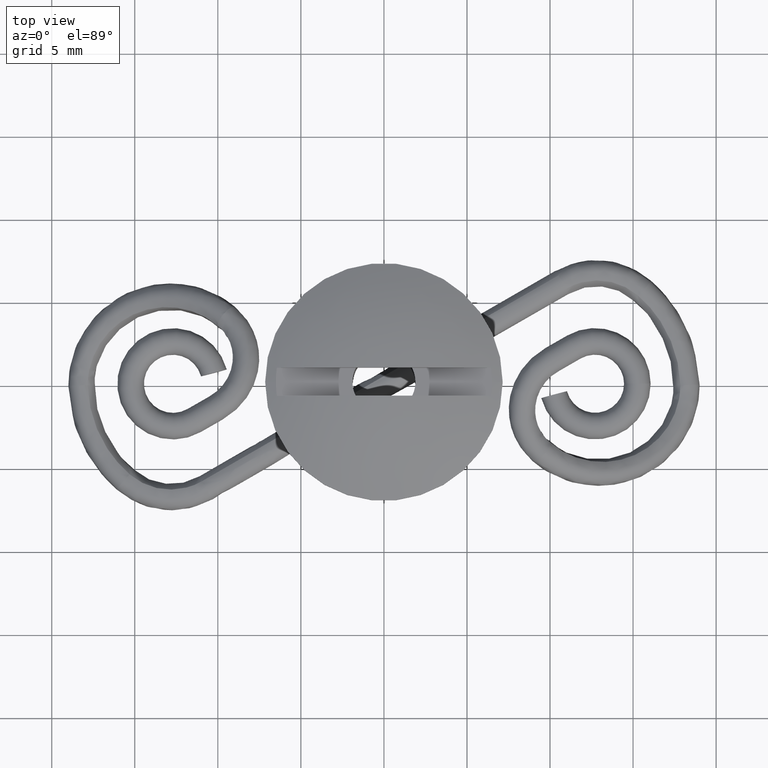
[diagram: clean part render]
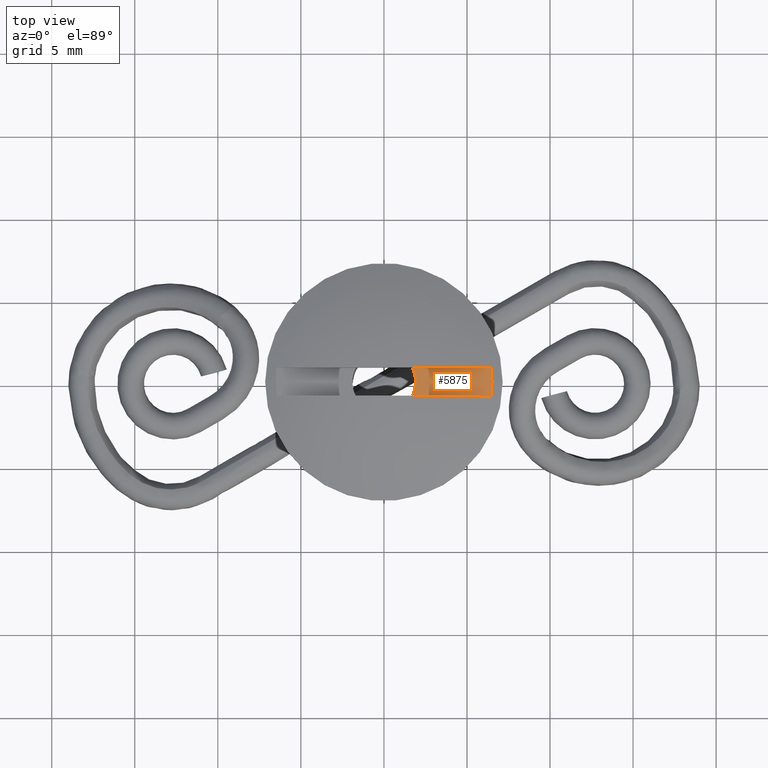
[diagram: same view with one face highlighted and labeled with its STEP entity id]
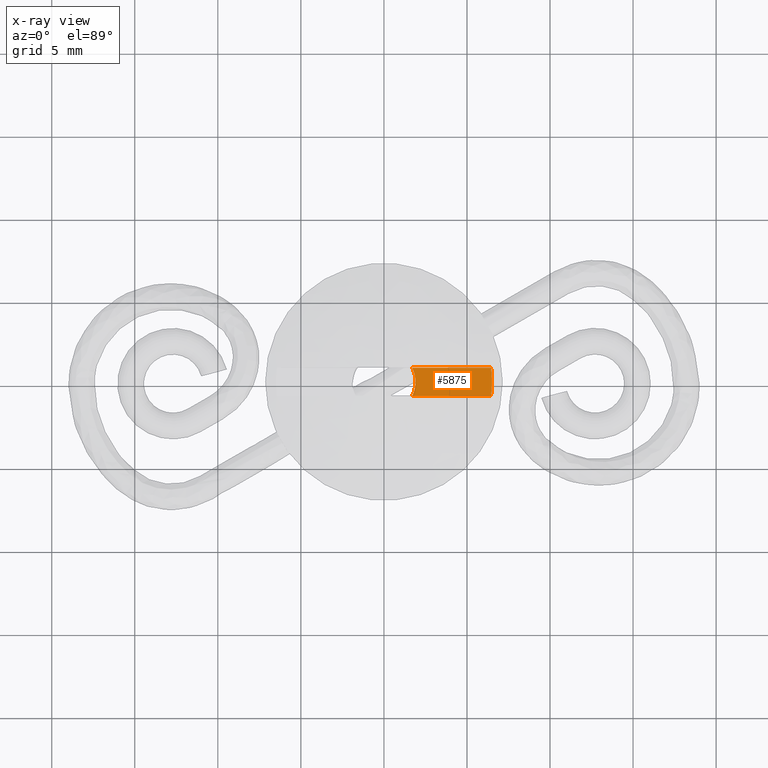
[diagram: x-ray of the same camera — body ghosted, the highlighted face saturated]
A machine part, top view. The second image highlights one B-rep face of the part: STEP entity #5875.
The next image is the same camera in x-ray: the body ghosted, the highlighted face saturated — about 0% of this face is hidden behind the body in this view.
In plain terms, the highlighted planar face has unit normal (0, 0, -1).
Its self-contained STEP definition (entity closure, byte-faithful):
#213 = EDGE_CURVE ( 'NONE', #7646, #695, #8181, .T. ) ;
#401 = EDGE_CURVE ( 'NONE', #2239, #976, #5848, .T. ) ;
#620 = DIRECTION ( 'NONE',  ( 1.000000000000000000, -0.0000000000000000000, -0.0000000000000000000 ) ) ;
#695 = VERTEX_POINT ( 'NONE', #5358 ) ;
#976 = VERTEX_POINT ( 'NONE', #5826 ) ;
#1254 = CARTESIAN_POINT ( 'NONE',  ( 6.445785389308870400, 0.8499999999999997600, 11.19406900172935500 ) ) ;
#1313 = VERTEX_POINT ( 'NONE', #1254 ) ;
#1546 = CARTESIAN_POINT ( 'NONE',  ( 0.0000000000000000000, -3.999999997006400700E-006, 11.19406900172935500 ) ) ;
#1558 = AXIS2_PLACEMENT_3D ( 'NONE', #2941, #7821, #3639 ) ;
#1751 = ORIENTED_EDGE ( 'NONE', *, *, #213, .T. ) ;
#1942 = CIRCLE ( 'NONE', #1558, 6.501588735458718700 ) ;
#2239 = VERTEX_POINT ( 'NONE', #3031 ) ;
#2240 = DIRECTION ( 'NONE',  ( 1.000000000000000000, 0.0000000000000000000, 0.0000000000000000000 ) ) ;
#2286 = CARTESIAN_POINT ( 'NONE',  ( 6.501588735457489500, -7.999999994809017500E-006, 11.19406900172935500 ) ) ;
#2456 = DIRECTION ( 'NONE',  ( 0.0000000000000000000, 0.0000000000000000000, -1.000000000000000000 ) ) ;
#2463 = ORIENTED_EDGE ( 'NONE', *, *, #4415, .T. ) ;
#2528 = PLANE ( 'NONE',  #4689 ) ;
#2579 = EDGE_CURVE ( 'NONE', #6568, #976, #8606, .T. ) ;
#2627 = ORIENTED_EDGE ( 'NONE', *, *, #2579, .F. ) ;
#2882 = CARTESIAN_POINT ( 'NONE',  ( 0.0000000000000000000, 0.0000000000000000000, 11.19406900000000100 ) ) ;
#2941 = CARTESIAN_POINT ( 'NONE',  ( 0.0000000000000000000, -3.999999997006400700E-006, 11.19406900172935500 ) ) ;
#3031 = CARTESIAN_POINT ( 'NONE',  ( 1.699264546796643000, -0.8499999999999999800, 11.19406900000000100 ) ) ;
#3151 = AXIS2_PLACEMENT_3D ( 'NONE', #1546, #6407, #2240 ) ;
#3204 = ORIENTED_EDGE ( 'NONE', *, *, #5060, .F. ) ;
#3230 = DIRECTION ( 'NONE',  ( -0.0000000000000000000, 0.0000000000000000000, -1.000000000000000000 ) ) ;
#3575 = DIRECTION ( 'NONE',  ( -1.000000000000000000, 0.0000000000000000000, 0.0000000000000000000 ) ) ;
#3639 = DIRECTION ( 'NONE',  ( 1.000000000000000000, 0.0000000000000000000, 0.0000000000000000000 ) ) ;
#3894 = LINE ( 'NONE', #4803, #7389 ) ;
#3968 = AXIS2_PLACEMENT_3D ( 'NONE', #7342, #2456, #6635 ) ;
#4415 = EDGE_CURVE ( 'NONE', #695, #2239, #8276, .T. ) ;
#4689 = AXIS2_PLACEMENT_3D ( 'NONE', #5989, #3230, #8126 ) ;
#4803 = CARTESIAN_POINT ( 'NONE',  ( -7.150000000001116800, 0.8499999999999999800, 11.19406900172935200 ) ) ;
#4868 = ORIENTED_EDGE ( 'NONE', *, *, #5209, .F. ) ;
#5060 = EDGE_CURVE ( 'NONE', #7646, #1313, #3894, .T. ) ;
#5209 = EDGE_CURVE ( 'NONE', #1313, #6568, #1942, .T. ) ;
#5358 = CARTESIAN_POINT ( 'NONE',  ( 1.899999999995789300, -3.999999996764854000E-006, 11.19406900000000100 ) ) ;
#5457 = CARTESIAN_POINT ( 'NONE',  ( 1.699264546796643200, 0.8499999999999996400, 11.19406900000000100 ) ) ;
#5826 = CARTESIAN_POINT ( 'NONE',  ( 6.445786444261689700, -0.8499999999999999800, 11.19406900172935200 ) ) ;
#5848 = LINE ( 'NONE', #8187, #6291 ) ;
#5875 = ADVANCED_FACE ( 'NONE', ( #8490 ), #2528, .F. ) ;
#5989 = CARTESIAN_POINT ( 'NONE',  ( -7.150000000001116800, 0.8499999999999999800, 11.19406900172935200 ) ) ;
#6291 = VECTOR ( 'NONE', #8954, 1000.000000000000000 ) ;
#6407 = DIRECTION ( 'NONE',  ( 0.0000000000000000000, 0.0000000000000000000, -1.000000000000000000 ) ) ;
#6419 = EDGE_LOOP ( 'NONE', ( #3204, #1751, #2463, #7742, #2627, #4868 ) ) ;
#6568 = VERTEX_POINT ( 'NONE', #2286 ) ;
#6635 = DIRECTION ( 'NONE',  ( -1.000000000000000000, 0.0000000000000000000, 0.0000000000000000000 ) ) ;
#7342 = CARTESIAN_POINT ( 'NONE',  ( 0.0000000000000000000, 0.0000000000000000000, 11.19406900000000100 ) ) ;
#7389 = VECTOR ( 'NONE', #620, 1000.000000000000000 ) ;
#7646 = VERTEX_POINT ( 'NONE', #5457 ) ;
#7742 = ORIENTED_EDGE ( 'NONE', *, *, #401, .T. ) ;
#7754 = DIRECTION ( 'NONE',  ( 0.0000000000000000000, 0.0000000000000000000, -1.000000000000000000 ) ) ;
#7821 = DIRECTION ( 'NONE',  ( 0.0000000000000000000, 0.0000000000000000000, -1.000000000000000000 ) ) ;
#8126 = DIRECTION ( 'NONE',  ( -1.000000000000000000, 0.0000000000000000000, 0.0000000000000000000 ) ) ;
#8181 = CIRCLE ( 'NONE', #3968, 1.899999999999999900 ) ;
#8187 = CARTESIAN_POINT ( 'NONE',  ( -7.150000000001116800, -0.8499999999999999800, 11.19406900172935200 ) ) ;
#8276 = CIRCLE ( 'NONE', #8843, 1.899999999999999900 ) ;
#8490 = FACE_OUTER_BOUND ( 'NONE', #6419, .T. ) ;
#8606 = CIRCLE ( 'NONE', #3151, 6.501588735458718700 ) ;
#8843 = AXIS2_PLACEMENT_3D ( 'NONE', #2882, #7754, #3575 ) ;
#8954 = DIRECTION ( 'NONE',  ( 1.000000000000000000, -0.0000000000000000000, -0.0000000000000000000 ) ) ;